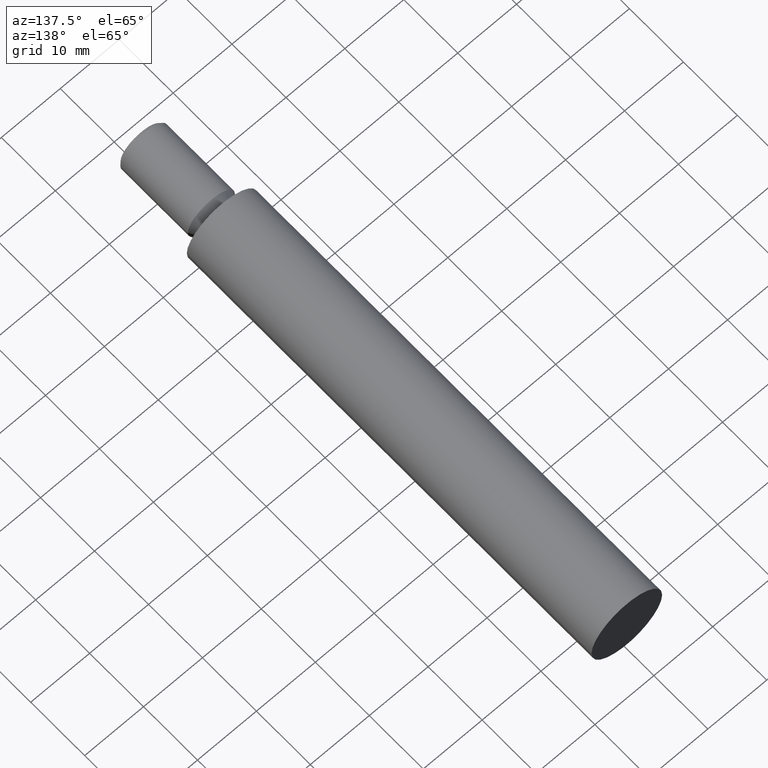
[diagram: clean part render]
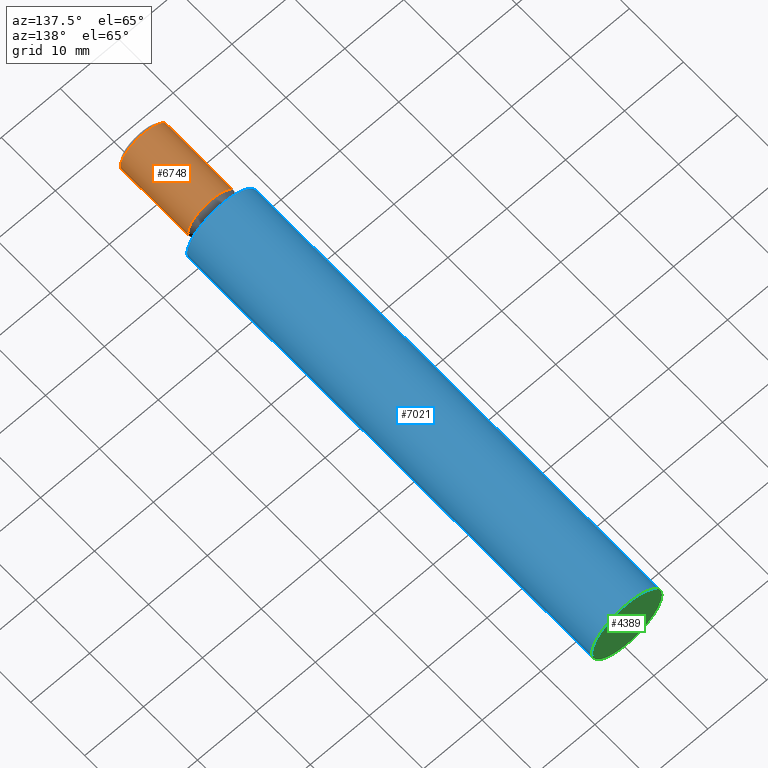
[diagram: same view with three faces highlighted in distinct colors, each labeled with its STEP entity id]
A machine part, auxiliary view with three faces highlighted in distinct colors.
Their STEP definitions:

[orange] entity #6748 — the highlighted cylindrical surface (bore or boss wall) has radius 4 mm, axis along (0, -1, -0).
#614 = DIRECTION ( 'NONE',  ( 1.000000000000000000, 0.000000000000000000, 0.000000000000000000 ) ) ;
#1117 = EDGE_CURVE ( 'NONE', #2633, #2633, #2576, .T. ) ;
#1896 = AXIS2_PLACEMENT_3D ( 'NONE', #13188, #6892, #614 ) ;
#2340 = AXIS2_PLACEMENT_3D ( 'NONE', #4563, #7914, #10875 ) ;
#2576 = CIRCLE ( 'NONE', #2340, 4.000000000000000888 ) ;
#2633 = VERTEX_POINT ( 'NONE', #5698 ) ;
#3025 = EDGE_LOOP ( 'NONE', ( #6714 ) ) ;
#4149 = DIRECTION ( 'NONE',  ( 1.000000000000000000, 0.000000000000000000, 0.000000000000000000 ) ) ;
#4563 = CARTESIAN_POINT ( 'NONE',  ( 1.915230333585084348E-31, -14.49999999999998934, 0.000000000000000000 ) ) ;
#5698 = CARTESIAN_POINT ( 'NONE',  ( 4.000000000000000888, -14.49999999999998934, 0.000000000000000000 ) ) ;
#6714 = ORIENTED_EDGE ( 'NONE', *, *, #1117, .T. ) ;
#6748 = ADVANCED_FACE ( 'NONE', ( #7390, #9700 ), #8735, .T. ) ;
#6892 = DIRECTION ( 'NONE',  ( 2.139922160430262325E-33, -1.000000000000000000, -0.000000000000000000 ) ) ;
#7342 = AXIS2_PLACEMENT_3D ( 'NONE', #10154, #12319, #4149 ) ;
#7390 = FACE_OUTER_BOUND ( 'NONE', #3025, .T. ) ;
#7914 = DIRECTION ( 'NONE',  ( -2.139922160430250693E-33, 1.000000000000000000, 0.000000000000000000 ) ) ;
#7969 = EDGE_LOOP ( 'NONE', ( #12380 ) ) ;
#8735 = CYLINDRICAL_SURFACE ( 'NONE', #7342, 4.000000000000000888 ) ;
#9700 = FACE_OUTER_BOUND ( 'NONE', #7969, .T. ) ;
#10154 = CARTESIAN_POINT ( 'NONE',  ( 1.925929944387235853E-31, -15.00000000000000000, 0.000000000000000000 ) ) ;
#10875 = DIRECTION ( 'NONE',  ( 1.000000000000000000, 0.000000000000000000, 0.000000000000000000 ) ) ;
#11206 = VERTEX_POINT ( 'NONE', #12136 ) ;
#11540 = CIRCLE ( 'NONE', #1896, 4.000000000000000000 ) ;
#12136 = CARTESIAN_POINT ( 'NONE',  ( 4.000000000000000000, -2.000000000000000000, 0.000000000000000000 ) ) ;
#12319 = DIRECTION ( 'NONE',  ( 2.139922160430262325E-33, -1.000000000000000000, -0.000000000000000000 ) ) ;
#12380 = ORIENTED_EDGE ( 'NONE', *, *, #13416, .T. ) ;
#13188 = CARTESIAN_POINT ( 'NONE',  ( 1.647740063531301761E-31, -2.000000000000000000, 0.000000000000000000 ) ) ;
#13416 = EDGE_CURVE ( 'NONE', #11206, #11206, #11540, .T. ) ;

[blue] entity #7021 — the highlighted cylindrical surface (bore or boss wall) has radius 6 mm, axis along (0, -1, -0).
#361 = VERTEX_POINT ( 'NONE', #2512 ) ;
#473 = ORIENTED_EDGE ( 'NONE', *, *, #11148, .F. ) ;
#1183 = CARTESIAN_POINT ( 'NONE',  ( 0.000000000000000000, 75.00000000000000000, 0.000000000000000000 ) ) ;
#1883 = EDGE_LOOP ( 'NONE', ( #2330 ) ) ;
#2330 = ORIENTED_EDGE ( 'NONE', *, *, #12876, .T. ) ;
#2512 = CARTESIAN_POINT ( 'NONE',  ( 6.000000000000009770, 1.283953296258159242E-32, 0.000000000000000000 ) ) ;
#3124 = DIRECTION ( 'NONE',  ( 1.000000000000000000, 0.000000000000000000, 0.000000000000000000 ) ) ;
#3446 = FACE_OUTER_BOUND ( 'NONE', #1883, .T. ) ;
#3898 = AXIS2_PLACEMENT_3D ( 'NONE', #9135, #8027, #3971 ) ;
#3971 = DIRECTION ( 'NONE',  ( 1.000000000000000000, 2.139922160430261983E-33, 0.000000000000000000 ) ) ;
#4713 = CARTESIAN_POINT ( 'NONE',  ( 1.925929944387235853E-31, -15.00000000000000000, 0.000000000000000000 ) ) ;
#5502 = EDGE_LOOP ( 'NONE', ( #473 ) ) ;
#5768 = AXIS2_PLACEMENT_3D ( 'NONE', #4713, #12135, #6878 ) ;
#6878 = DIRECTION ( 'NONE',  ( 1.000000000000000000, 0.000000000000000000, 0.000000000000000000 ) ) ;
#7021 = ADVANCED_FACE ( 'NONE', ( #3446, #10863 ), #9869, .T. ) ;
#8027 = DIRECTION ( 'NONE',  ( 2.139922160430262325E-33, -1.000000000000000000, -0.000000000000000000 ) ) ;
#8560 = DIRECTION ( 'NONE',  ( 2.139922160430262325E-33, -1.000000000000000000, -0.000000000000000000 ) ) ;
#8570 = CIRCLE ( 'NONE', #12775, 5.999999999999996447 ) ;
#8960 = CIRCLE ( 'NONE', #3898, 6.000000000000009770 ) ;
#9135 = CARTESIAN_POINT ( 'NONE',  ( 1.604941620322696398E-31, 0.000000000000000000, 0.000000000000000000 ) ) ;
#9869 = CYLINDRICAL_SURFACE ( 'NONE', #5768, 6.000000000000003553 ) ;
#10863 = FACE_OUTER_BOUND ( 'NONE', #5502, .T. ) ;
#11148 = EDGE_CURVE ( 'NONE', #361, #361, #8960, .T. ) ;
#12135 = DIRECTION ( 'NONE',  ( 2.139922160430262325E-33, -1.000000000000000000, -0.000000000000000000 ) ) ;
#12680 = VERTEX_POINT ( 'NONE', #13086 ) ;
#12775 = AXIS2_PLACEMENT_3D ( 'NONE', #1183, #8560, #3124 ) ;
#12876 = EDGE_CURVE ( 'NONE', #12680, #12680, #8570, .T. ) ;
#13086 = CARTESIAN_POINT ( 'NONE',  ( 5.999999999999996447, 75.00000000000000000, 0.000000000000000000 ) ) ;

[green] entity #4389 — the highlighted planar face has unit normal (-0, 1, 0).
#1183 = CARTESIAN_POINT ( 'NONE',  ( 0.000000000000000000, 75.00000000000000000, 0.000000000000000000 ) ) ;
#3124 = DIRECTION ( 'NONE',  ( 1.000000000000000000, 0.000000000000000000, 0.000000000000000000 ) ) ;
#3478 = PLANE ( 'NONE',  #4134 ) ;
#3622 = DIRECTION ( 'NONE',  ( -2.139922160430262325E-33, 1.000000000000000000, 0.000000000000000000 ) ) ;
#4134 = AXIS2_PLACEMENT_3D ( 'NONE', #9790, #3622, #10989 ) ;
#4156 = FACE_OUTER_BOUND ( 'NONE', #4641, .T. ) ;
#4389 = ADVANCED_FACE ( 'NONE', ( #4156 ), #3478, .T. ) ;
#4641 = EDGE_LOOP ( 'NONE', ( #5994 ) ) ;
#5994 = ORIENTED_EDGE ( 'NONE', *, *, #12876, .F. ) ;
#8560 = DIRECTION ( 'NONE',  ( 2.139922160430262325E-33, -1.000000000000000000, -0.000000000000000000 ) ) ;
#8570 = CIRCLE ( 'NONE', #12775, 5.999999999999996447 ) ;
#9790 = CARTESIAN_POINT ( 'NONE',  ( 1.373780055810155475E-65, 75.00000000000000000, 0.000000000000000000 ) ) ;
#10989 = DIRECTION ( 'NONE',  ( -1.000000000000000000, -2.139922160430262325E-33, 0.000000000000000000 ) ) ;
#12680 = VERTEX_POINT ( 'NONE', #13086 ) ;
#12775 = AXIS2_PLACEMENT_3D ( 'NONE', #1183, #8560, #3124 ) ;
#12876 = EDGE_CURVE ( 'NONE', #12680, #12680, #8570, .T. ) ;
#13086 = CARTESIAN_POINT ( 'NONE',  ( 5.999999999999996447, 75.00000000000000000, 0.000000000000000000 ) ) ;